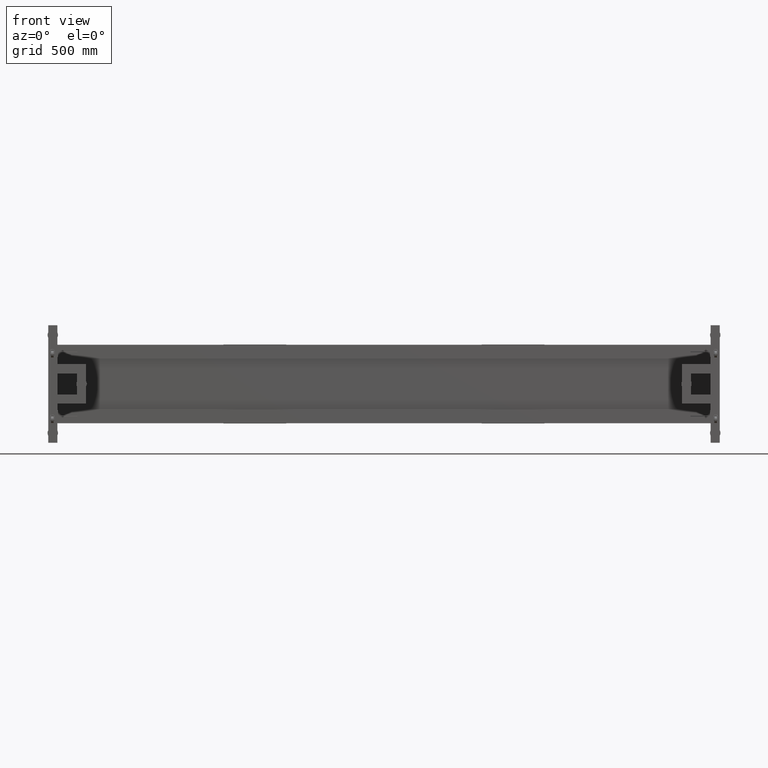
[diagram: clean part render]
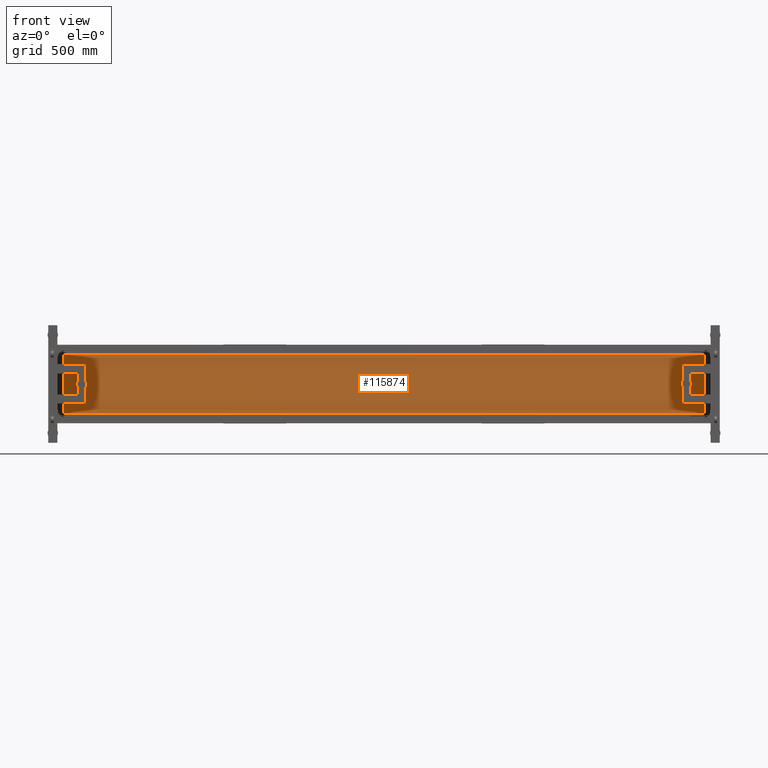
[diagram: same view with one face highlighted and labeled with its STEP entity id]
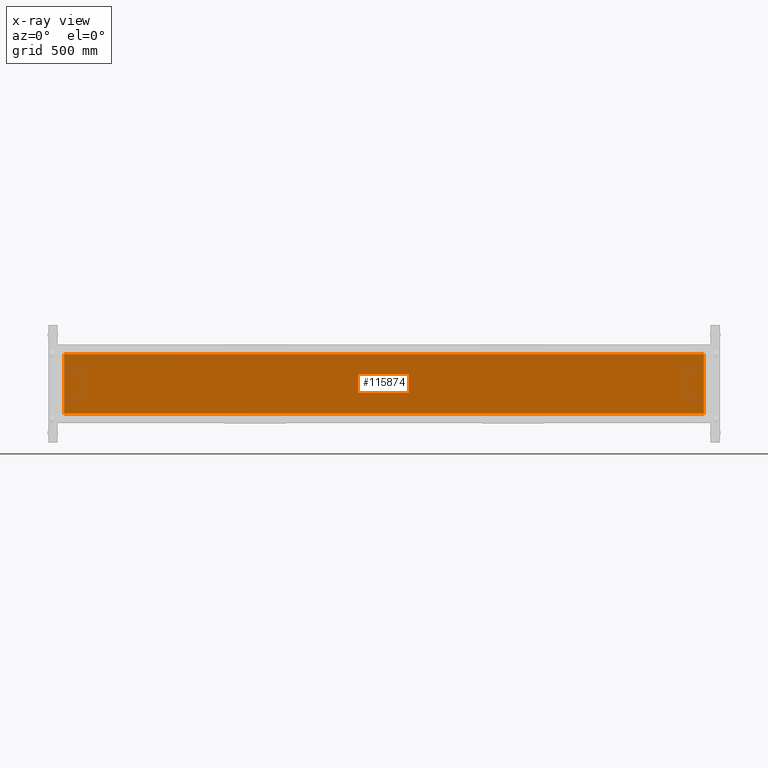
[diagram: x-ray of the same camera — body ghosted, the highlighted face saturated]
A machine part, front view. The second image highlights one B-rep face of the part: STEP entity #115874.
The next image is the same camera in x-ray: the body ghosted, the highlighted face saturated — about 3% of this face is hidden behind the body in this view.
In plain terms, the highlighted planar face has unit normal (-0, 1, -0).
Its self-contained STEP definition (entity closure, byte-faithful):
#6040 = DIRECTION ( 'NONE',  ( -4.543257172554225407E-31, 1.000000000000000472E-15, 1.000000000000000000 ) ) ;
#8731 = VERTEX_POINT ( 'NONE', #23031 ) ;
#11351 = LINE ( 'NONE', #55170, #26000 ) ;
#12780 = VECTOR ( 'NONE', #93087, 1000.000000000000000 ) ;
#17137 = LINE ( 'NONE', #54276, #30227 ) ;
#18114 = VERTEX_POINT ( 'NONE', #100126 ) ;
#23031 = CARTESIAN_POINT ( 'NONE',  ( -1216.662487437185973, 555.4410804020128580, 228.4900000000081093 ) ) ;
#26000 = VECTOR ( 'NONE', #84333, 1000.000000000000000 ) ;
#26027 = CARTESIAN_POINT ( 'NONE',  ( 681.8275125628146043, 555.4410804020131991, 1.110223024625156540E-13 ) ) ;
#27336 = CARTESIAN_POINT ( 'NONE',  ( 1880.317512562814727, 555.4410804020139949, 228.4900000000001228 ) ) ;
#30227 = VECTOR ( 'NONE', #109131, 1000.000000000000000 ) ;
#31081 = CARTESIAN_POINT ( 'NONE',  ( -516.6624874371852911, 555.4410804020124033, -228.4899999999998954 ) ) ;
#41143 = ORIENTED_EDGE ( 'NONE', *, *, #55469, .F. ) ;
#51278 = EDGE_CURVE ( 'NONE', #57134, #8731, #111369, .T. ) ;
#54276 = CARTESIAN_POINT ( 'NONE',  ( 3680.317512562815864, 555.4410804020130854, -228.4899999999998954 ) ) ;
#55170 = CARTESIAN_POINT ( 'NONE',  ( -1216.662487437185973, 555.4410804020124033, -228.4899999999998954 ) ) ;
#55469 = EDGE_CURVE ( 'NONE', #18114, #8731, #11351, .T. ) ;
#56346 = AXIS2_PLACEMENT_3D ( 'NONE', #26027, #119194, #6040 ) ;
#57134 = VERTEX_POINT ( 'NONE', #83083 ) ;
#57354 = ORIENTED_EDGE ( 'NONE', *, *, #75024, .T. ) ;
#59020 = DIRECTION ( 'NONE',  ( 1.000000000000000000, 4.543257172554223644E-16, 0.000000000000000000 ) ) ;
#64361 = PLANE ( 'NONE',  #56346 ) ;
#69153 = VERTEX_POINT ( 'NONE', #114947 ) ;
#75024 = EDGE_CURVE ( 'NONE', #18114, #69153, #77295, .T. ) ;
#77295 = LINE ( 'NONE', #31081, #114895 ) ;
#77743 = ORIENTED_EDGE ( 'NONE', *, *, #51278, .T. ) ;
#83083 = CARTESIAN_POINT ( 'NONE',  ( 3680.317512562815864, 555.4410804020135402, 228.4900000000081093 ) ) ;
#84333 = DIRECTION ( 'NONE',  ( 0.000000000000000000, 1.000000000000000472E-15, 1.000000000000000000 ) ) ;
#86334 = EDGE_CURVE ( 'NONE', #69153, #57134, #17137, .T. ) ;
#93087 = DIRECTION ( 'NONE',  ( -1.000000000000000000, -4.543257172554223644E-16, 0.000000000000000000 ) ) ;
#98245 = ORIENTED_EDGE ( 'NONE', *, *, #86334, .T. ) ;
#100126 = CARTESIAN_POINT ( 'NONE',  ( -1216.662487437185973, 555.4410804020124033, -228.4899999999998954 ) ) ;
#108030 = EDGE_LOOP ( 'NONE', ( #77743, #41143, #57354, #98245 ) ) ;
#108898 = FACE_OUTER_BOUND ( 'NONE', #108030, .T. ) ;
#109131 = DIRECTION ( 'NONE',  ( -2.924973517714875585E-31, 1.000000000000000472E-15, 1.000000000000000000 ) ) ;
#111369 = LINE ( 'NONE', #27336, #12780 ) ;
#114895 = VECTOR ( 'NONE', #59020, 1000.000000000000000 ) ;
#114947 = CARTESIAN_POINT ( 'NONE',  ( 3680.317512562815864, 555.4410804020130854, -228.4899999999998954 ) ) ;
#115874 = ADVANCED_FACE ( 'NONE', ( #108898 ), #64361, .F. ) ;
#119194 = DIRECTION ( 'NONE',  ( -4.543257172554223644E-16, 1.000000000000000000, -1.000000000000000472E-15 ) ) ;